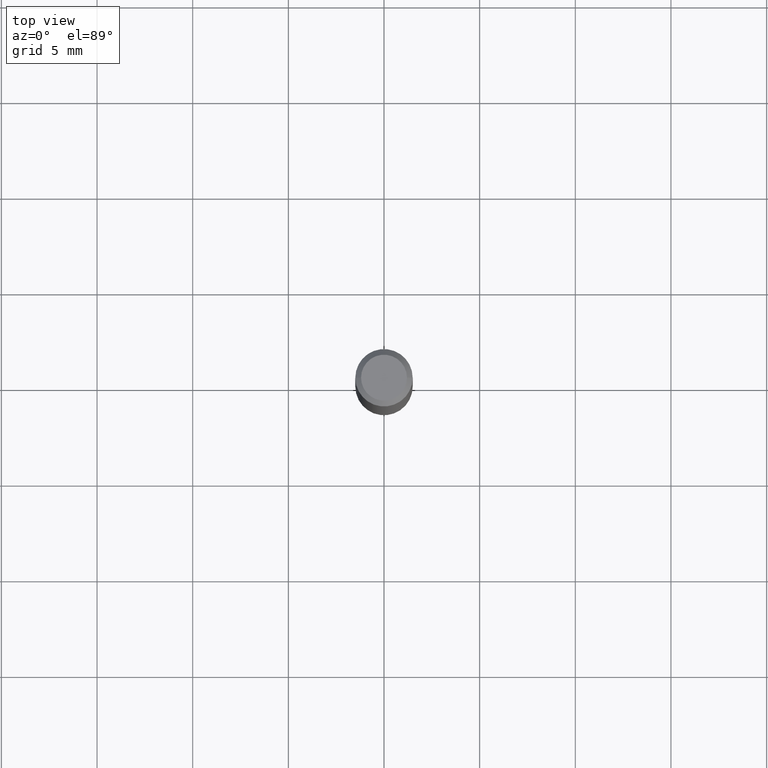
[diagram: clean part render]
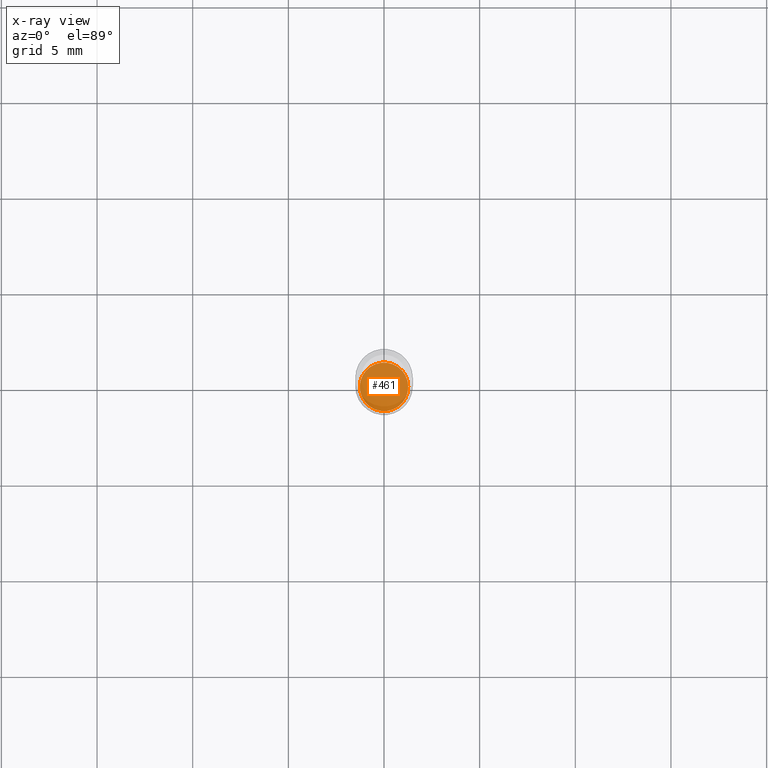
[diagram: x-ray — body ghosted, one internal face saturated and labeled with its STEP entity id]
A machine part, top view, then the same camera in x-ray: the body is ghosted and one INTERNAL B-rep face — a face not visible from any outside direction — is saturated and labeled: STEP entity #461.
In plain terms, the highlighted planar face has unit normal (-0, 0, 1).
Its self-contained STEP definition (entity closure, byte-faithful):
#17 = ORIENTED_EDGE ( 'NONE', *, *, #79, .F. ) ;
#20 = CARTESIAN_POINT ( 'NONE',  ( 0.04989999999999999991, -4.169876162980368296E-15, -1.094500000000000028 ) ) ;
#42 = VERTEX_POINT ( 'NONE', #20 ) ;
#44 = EDGE_LOOP ( 'NONE', ( #17, #268 ) ) ;
#47 = DIRECTION ( 'NONE',  ( 1.000000000000000000, -6.982962677686265922E-15, 4.876176775795935793E-29 ) ) ;
#79 = EDGE_CURVE ( 'NONE', #42, #147, #444, .T. ) ;
#128 = AXIS2_PLACEMENT_3D ( 'NONE', #464, #200, #363 ) ;
#147 = VERTEX_POINT ( 'NONE', #406 ) ;
#161 = DIRECTION ( 'NONE',  ( -2.438088387897960049E-29, 3.491481338843145188E-15, 1.000000000000000000 ) ) ;
#178 = DIRECTION ( 'NONE',  ( -2.445468806185136597E-29, 3.491481338843145583E-15, 1.000000000000000000 ) ) ;
#180 = CIRCLE ( 'NONE', #128, 0.04989999999999999991 ) ;
#200 = DIRECTION ( 'NONE',  ( -2.445468806185136597E-29, 3.491481338843145583E-15, 1.000000000000000000 ) ) ;
#234 = PLANE ( 'NONE',  #380 ) ;
#239 = FACE_OUTER_BOUND ( 'NONE', #44, .T. ) ;
#268 = ORIENTED_EDGE ( 'NONE', *, *, #463, .F. ) ;
#337 = DIRECTION ( 'NONE',  ( 1.000000000000000000, -6.982962677686269866E-15, 0.000000000000000000 ) ) ;
#363 = DIRECTION ( 'NONE',  ( 1.000000000000000000, -6.982962677686269866E-15, 0.000000000000000000 ) ) ;
#380 = AXIS2_PLACEMENT_3D ( 'NONE', #396, #161, #47 ) ;
#396 = CARTESIAN_POINT ( 'NONE',  ( 5.844702496760615200E-30, -6.817425953686002243E-15, -1.094500000000000028 ) ) ;
#406 = CARTESIAN_POINT ( 'NONE',  ( -0.04989999999999999991, -3.464216273045421580E-15, -1.094500000000000028 ) ) ;
#410 = CARTESIAN_POINT ( 'NONE',  ( 2.676565608369632355E-29, -3.821426325363822773E-15, -1.094500000000000028 ) ) ;
#437 = AXIS2_PLACEMENT_3D ( 'NONE', #410, #178, #337 ) ;
#444 = CIRCLE ( 'NONE', #437, 0.04989999999999999991 ) ;
#461 = ADVANCED_FACE ( 'NONE', ( #239 ), #234, .F. ) ;
#463 = EDGE_CURVE ( 'NONE', #147, #42, #180, .T. ) ;
#464 = CARTESIAN_POINT ( 'NONE',  ( 2.676565608369632355E-29, -3.821426325363822773E-15, -1.094500000000000028 ) ) ;